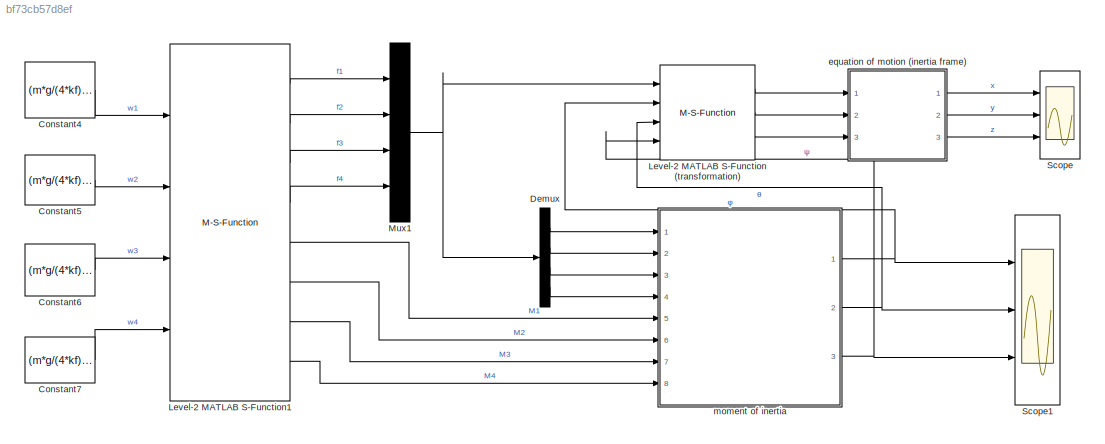
MODEL slx_bf73cb57d8ef
KIND model
CONFIG AbsTol = auto
CONFIG EnableMultiTasking = off
CONFIG FixedStep = auto
CONFIG MaxStep = auto
CONFIG MinStep = auto
CONFIG RelTol = 1e-3
CONFIG SampleTimeConstraint = Unconstrained
CONFIG SolverName = VariableStepAuto
CONFIG StartTime = 0.0
CONFIG StopTime = 10
BLOCK [Constant] Constant4
  Value = (m*g/(4*kf))^0.5
BLOCK [Constant] Constant5
  Value = (m*g/(4*kf))^0.5
BLOCK [Constant] Constant6
  Value = (m*g/(4*kf))^0.5
BLOCK [Constant] Constant7
  Value = (m*g/(4*kf))^0.5
BLOCK [Demux] Demux
  Ports = [1, 4]
BLOCK [M-S-Function] Level-2 MATLAB S-Function (transformation)
  FunctionName = newton2nd
  Ports = [4, 3]
BLOCK [M-S-Function] Level-2 MATLAB S-Function1
  FunctionName = convert
  Ports = [4, 8]
BLOCK [Mux] Mux1
  DisplayOption = bar
  Ports = [4, 1]
BLOCK [Scope] Scope
  Floating = off
  NumInputPorts = 3
  Ports = [3]
  ScopeSpecificationString = Simulink.scopes.TimeScopeBlockCfg('CurrentConfiguration', extmgr.ConfigurationSet(extmgr.Configuration('Core','General UI',true),extmgr.Configuration('Core','Source UI',true),extmgr.Configuration('Sources','WiredSimulink',true),extmgr.Configuration('Visuals','Time Domain',true,'SerializedDisplays',{struct('MinYLimReal','-1.00000','MaxYLimReal','1.00000','YLabelReal','','MinYLimMag','0.00000','MaxY...<+2693ch>
BLOCK [Scope] Scope1
  Floating = off
  NumInputPorts = 3
  Ports = [3]
  ScopeSpecificationString = Simulink.scopes.TimeScopeBlockCfg('CurrentConfiguration', extmgr.ConfigurationSet(extmgr.Configuration('Core','General UI',true),extmgr.Configuration('Core','Source UI',true),extmgr.Configuration('Sources','WiredSimulink',true,'DataLoggingVariableName','ScopeData1'),extmgr.Configuration('Visuals','Time Domain',true,'SerializedDisplays',{struct('MinYLimReal','-1.00000','MaxYLimReal','1.00000','YLab...<+2705ch>
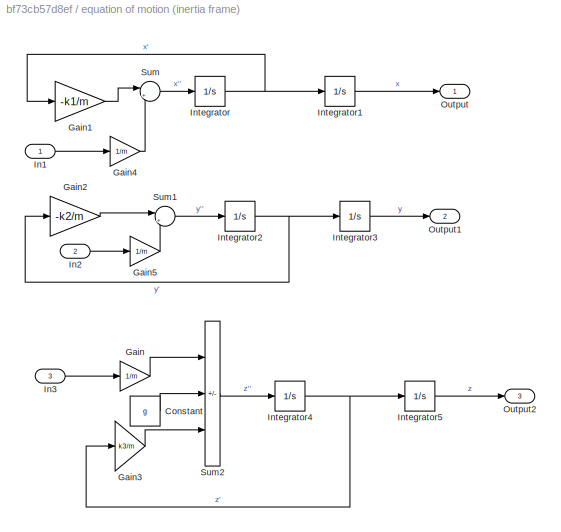
BLOCK [SubSystem] equation of motion (inertia frame)
  Ports = [3, 3]
  RequestExecContextInheritance = off
BLOCK [Constant] equation of motion (inertia frame)/Constant
  Value = g
BLOCK [Gain] equation of motion (inertia frame)/Gain
  Gain = 1/m
BLOCK [Gain] equation of motion (inertia frame)/Gain1
  Gain = -k1/m
BLOCK [Gain] equation of motion (inertia frame)/Gain2
  Gain = -k2/m
BLOCK [Gain] equation of motion (inertia frame)/Gain3
  Gain = k3/m
BLOCK [Gain] equation of motion (inertia frame)/Gain4
  Gain = 1/m
BLOCK [Gain] equation of motion (inertia frame)/Gain5
  Gain = 1/m
BLOCK [Inport] equation of motion (inertia frame)/In1
BLOCK [Inport] equation of motion (inertia frame)/In2
  Port = 2
BLOCK [Inport] equation of motion (inertia frame)/In3
  Port = 3
BLOCK [Integrator] equation of motion (inertia frame)/Integrator
  Ports = [1, 1]
BLOCK [Integrator] equation of motion (inertia frame)/Integrator1
  Ports = [1, 1]
BLOCK [Integrator] equation of motion (inertia frame)/Integrator2
  Ports = [1, 1]
BLOCK [Integrator] equation of motion (inertia frame)/Integrator3
  Ports = [1, 1]
BLOCK [Integrator] equation of motion (inertia frame)/Integrator4
  Ports = [1, 1]
BLOCK [Integrator] equation of motion (inertia frame)/Integrator5
  Ports = [1, 1]
BLOCK [Outport] equation of motion (inertia frame)/Output
BLOCK [Outport] equation of motion (inertia frame)/Output1
  Port = 2
BLOCK [Outport] equation of motion (inertia frame)/Output2
  Port = 3
BLOCK [Sum] equation of motion (inertia frame)/Sum
  Inputs = |++
  Ports = [2, 1]
BLOCK [Sum] equation of motion (inertia frame)/Sum1
  Inputs = |++
  Ports = [2, 1]
BLOCK [Sum] equation of motion (inertia frame)/Sum2
  IconShape = rectangular
  Inputs = |+--
  Ports = [3, 1]
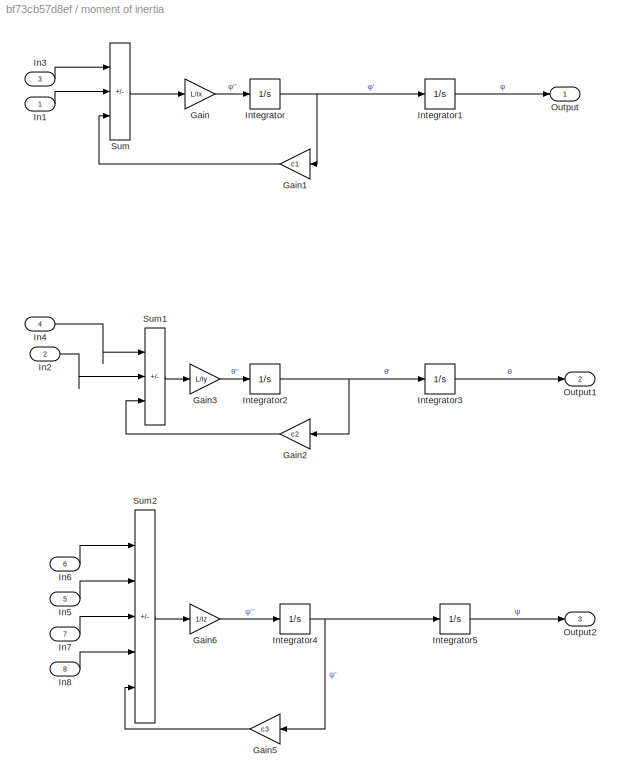
BLOCK [SubSystem] moment of inertia
  Ports = [8, 3]
  RequestExecContextInheritance = off
BLOCK [Gain] moment of inertia/Gain
  Gain = L/Ix
BLOCK [Gain] moment of inertia/Gain1
  Gain = c1
  NameLocation = top
BLOCK [Gain] moment of inertia/Gain2
  Gain = c2
  NameLocation = top
BLOCK [Gain] moment of inertia/Gain3
  Gain = L/Iy
BLOCK [Gain] moment of inertia/Gain5
  Gain = c3
  NameLocation = top
BLOCK [Gain] moment of inertia/Gain6
  Gain = 1/Iz
BLOCK [Inport] moment of inertia/In1
BLOCK [Inport] moment of inertia/In2
  Port = 2
BLOCK [Inport] moment of inertia/In3
  Port = 3
BLOCK [Inport] moment of inertia/In4
  Port = 4
BLOCK [Inport] moment of inertia/In5
  Port = 5
BLOCK [Inport] moment of inertia/In6
  Port = 6
BLOCK [Inport] moment of inertia/In7
  Port = 7
BLOCK [Inport] moment of inertia/In8
  Port = 8
BLOCK [Integrator] moment of inertia/Integrator
  Ports = [1, 1]
BLOCK [Integrator] moment of inertia/Integrator1
  Ports = [1, 1]
BLOCK [Integrator] moment of inertia/Integrator2
  Ports = [1, 1]
BLOCK [Integrator] moment of inertia/Integrator3
  Ports = [1, 1]
BLOCK [Integrator] moment of inertia/Integrator4
  Ports = [1, 1]
BLOCK [Integrator] moment of inertia/Integrator5
  Ports = [1, 1]
BLOCK [Outport] moment of inertia/Output
BLOCK [Outport] moment of inertia/Output1
  Port = 2
BLOCK [Outport] moment of inertia/Output2
  Port = 3
BLOCK [Sum] moment of inertia/Sum
  IconShape = rectangular
  Inputs = |+--
  Ports = [3, 1]
BLOCK [Sum] moment of inertia/Sum1
  IconShape = rectangular
  Inputs = |+--
  Ports = [3, 1]
BLOCK [Sum] moment of inertia/Sum2
  IconShape = rectangular
  Inputs = |+-+--
  Ports = [5, 1]
LINE Constant4:1 -> Level-2 MATLAB S-Function1:1
LINE Constant5:1 -> Level-2 MATLAB S-Function1:2
LINE Constant6:1 -> Level-2 MATLAB S-Function1:3
LINE Constant7:1 -> Level-2 MATLAB S-Function1:4
LINE Demux:1 -> moment of inertia:1
LINE Demux:2 -> moment of inertia:2
LINE Demux:3 -> moment of inertia:3
LINE Demux:4 -> moment of inertia:4
LINE Level-2 MATLAB S-Function (transformation):1 -> equation of motion (inertia frame):1
LINE Level-2 MATLAB S-Function (transformation):2 -> equation of motion (inertia frame):2
LINE Level-2 MATLAB S-Function (transformation):3 -> equation of motion (inertia frame):3
LINE Level-2 MATLAB S-Function1:1 -> Mux1:1
LINE Level-2 MATLAB S-Function1:2 -> Mux1:2
LINE Level-2 MATLAB S-Function1:3 -> Mux1:3
LINE Level-2 MATLAB S-Function1:4 -> Mux1:4
LINE Level-2 MATLAB S-Function1:5 -> moment of inertia:5
LINE Level-2 MATLAB S-Function1:6 -> moment of inertia:6
LINE Level-2 MATLAB S-Function1:7 -> moment of inertia:7
LINE Level-2 MATLAB S-Function1:8 -> moment of inertia:8
NET Mux1:1 -> Demux:1, Level-2 MATLAB S-Function (transformation):1
LINE equation of motion (inertia frame)/Constant:1 -> equation of motion (inertia frame)/Sum2:2
LINE equation of motion (inertia frame)/Gain1:1 -> equation of motion (inertia frame)/Sum:1
LINE equation of motion (inertia frame)/Gain2:1 -> equation of motion (inertia frame)/Sum1:1
LINE equation of motion (inertia frame)/Gain3:1 -> equation of motion (inertia frame)/Sum2:3
LINE equation of motion (inertia frame)/Gain4:1 -> equation of motion (inertia frame)/Sum:2
LINE equation of motion (inertia frame)/Gain5:1 -> equation of motion (inertia frame)/Sum1:2
LINE equation of motion (inertia frame)/Gain:1 -> equation of motion (inertia frame)/Sum2:1
LINE equation of motion (inertia frame)/In1:1 -> equation of motion (inertia frame)/Gain4:1
LINE equation of motion (inertia frame)/In2:1 -> equation of motion (inertia frame)/Gain5:1
LINE equation of motion (inertia frame)/In3:1 -> equation of motion (inertia frame)/Gain:1
LINE equation of motion (inertia frame)/Integrator1:1 -> equation of motion (inertia frame)/Output:1
NET equation of motion (inertia frame)/Integrator2:1 -> equation of motion (inertia frame)/Gain2:1, equation of motion (inertia frame)/Integrator3:1
LINE equation of motion (inertia frame)/Integrator3:1 -> equation of motion (inertia frame)/Output1:1
NET equation of motion (inertia frame)/Integrator4:1 -> equation of motion (inertia frame)/Gain3:1, equation of motion (inertia frame)/Integrator5:1
LINE equation of motion (inertia frame)/Integrator5:1 -> equation of motion (inertia frame)/Output2:1
NET equation of motion (inertia frame)/Integrator:1 -> equation of motion (inertia frame)/Gain1:1, equation of motion (inertia frame)/Integrator1:1
LINE equation of motion (inertia frame)/Sum1:1 -> equation of motion (inertia frame)/Integrator2:1
LINE equation of motion (inertia frame)/Sum2:1 -> equation of motion (inertia frame)/Integrator4:1
LINE equation of motion (inertia frame)/Sum:1 -> equation of motion (inertia frame)/Integrator:1
LINE equation of motion (inertia frame):1 -> Scope:1
LINE equation of motion (inertia frame):2 -> Scope:2
LINE equation of motion (inertia frame):3 -> Scope:3
LINE moment of inertia/Gain1:1 -> moment of inertia/Sum:3
LINE moment of inertia/Gain2:1 -> moment of inertia/Sum1:3
LINE moment of inertia/Gain3:1 -> moment of inertia/Integrator2:1
LINE moment of inertia/Gain5:1 -> moment of inertia/Sum2:5
LINE moment of inertia/Gain6:1 -> moment of inertia/Integrator4:1
LINE moment of inertia/Gain:1 -> moment of inertia/Integrator:1
LINE moment of inertia/In1:1 -> moment of inertia/Sum:2
LINE moment of inertia/In2:1 -> moment of inertia/Sum1:2
LINE moment of inertia/In3:1 -> moment of inertia/Sum:1
LINE moment of inertia/In4:1 -> moment of inertia/Sum1:1
LINE moment of inertia/In5:1 -> moment of inertia/Sum2:2
LINE moment of inertia/In6:1 -> moment of inertia/Sum2:1
LINE moment of inertia/In7:1 -> moment of inertia/Sum2:3
LINE moment of inertia/In8:1 -> moment of inertia/Sum2:4
LINE moment of inertia/Integrator1:1 -> moment of inertia/Output:1
NET moment of inertia/Integrator2:1 -> moment of inertia/Gain2:1, moment of inertia/Integrator3:1
LINE moment of inertia/Integrator3:1 -> moment of inertia/Output1:1
NET moment of inertia/Integrator4:1 -> moment of inertia/Gain5:1, moment of inertia/Integrator5:1
LINE moment of inertia/Integrator5:1 -> moment of inertia/Output2:1
NET moment of inertia/Integrator:1 -> moment of inertia/Gain1:1, moment of inertia/Integrator1:1
LINE moment of inertia/Sum1:1 -> moment of inertia/Gain3:1
LINE moment of inertia/Sum2:1 -> moment of inertia/Gain6:1
LINE moment of inertia/Sum:1 -> moment of inertia/Gain:1
NET moment of inertia:1 -> Level-2 MATLAB S-Function (transformation):2, Scope1:1
NET moment of inertia:2 -> Level-2 MATLAB S-Function (transformation):3, Scope1:2
NET moment of inertia:3 -> Level-2 MATLAB S-Function (transformation):4, Scope1:3
note: NET lines group one-source signal fan-out (src -> all destinations, sorted); 1:1 wires keep LINE
